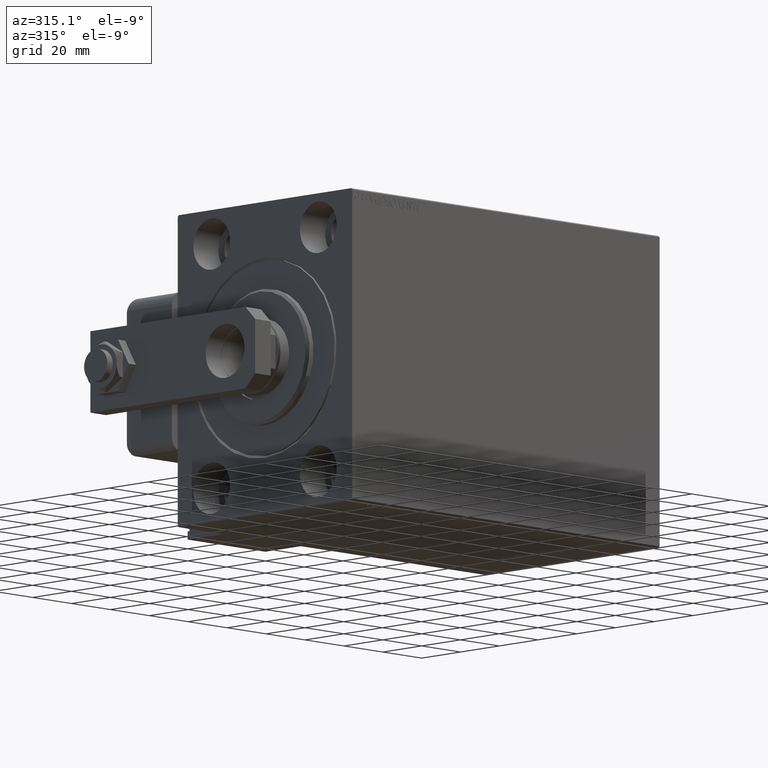
[diagram: clean part render]
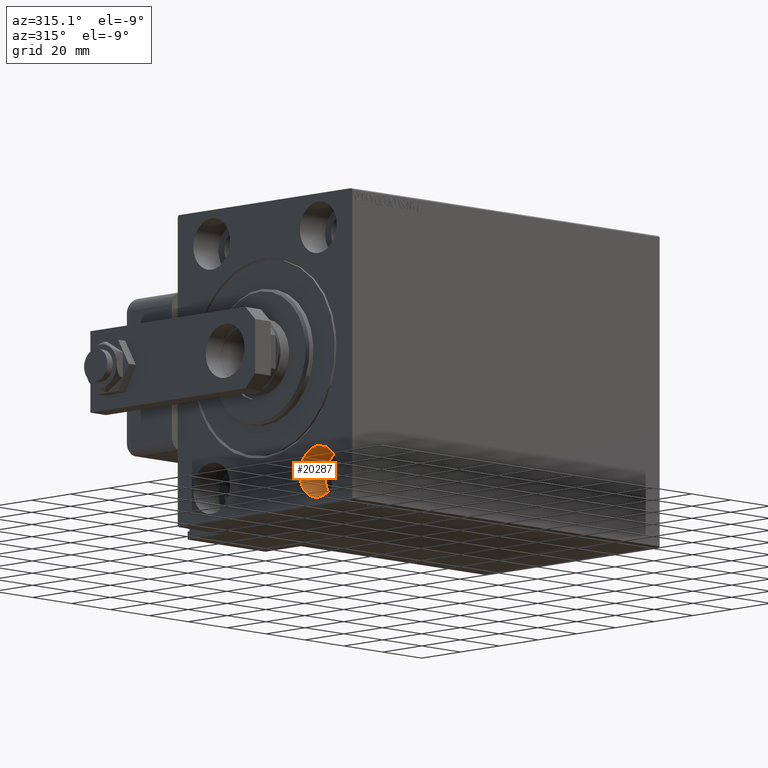
[diagram: same view with one face highlighted and labeled with its STEP entity id]
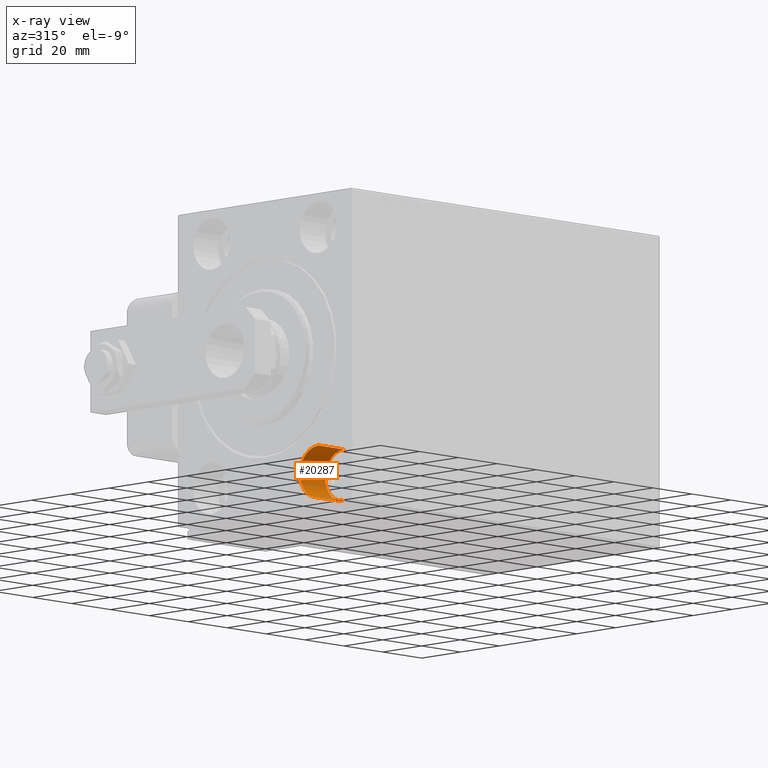
[diagram: x-ray of the same camera — body ghosted, the highlighted face saturated]
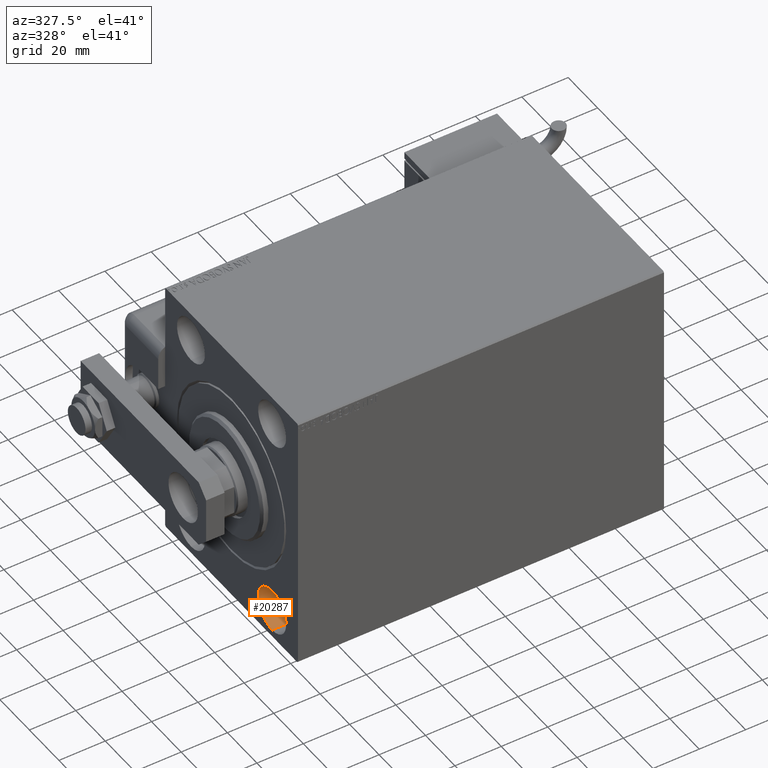
[diagram: same view with one face highlighted and labeled with its STEP entity id]
A machine part, auxiliary view. The second image highlights one B-rep face of the part: STEP entity #20287.
The next image is the same camera in x-ray: the body ghosted, the highlighted face saturated — about 0% of this face is hidden behind the body in this view.
A second angle (auxiliary view) of the same face is appended — the face is thin or edge-on in the first view.
In plain terms, the highlighted cylindrical surface (edge-blend (fillet) strip) has radius 9.5 mm, axis along (-1, -0, -0).
Its self-contained STEP definition (entity closure, byte-faithful):
#44 = EDGE_CURVE ( 'NONE', #39311, #5144, #53920, .T. ) ;
#1575 = VECTOR ( 'NONE', #12650, 1000.000000000000000 ) ;
#5144 = VERTEX_POINT ( 'NONE', #28489 ) ;
#5400 = CIRCLE ( 'NONE', #33353, 9.500000000000001776 ) ;
#5558 = DIRECTION ( 'NONE',  ( 0.000000000000000000, 0.000000000000000000, 1.000000000000000000 ) ) ;
#10283 = AXIS2_PLACEMENT_3D ( 'NONE', #28179, #46543, #5558 ) ;
#10616 = CIRCLE ( 'NONE', #22216, 9.500000000000001776 ) ;
#11534 = VERTEX_POINT ( 'NONE', #53905 ) ;
#12650 = DIRECTION ( 'NONE',  ( -1.000000000000000000, -0.000000000000000000, -0.000000000000000000 ) ) ;
#14274 = DIRECTION ( 'NONE',  ( 0.000000000000000000, 0.000000000000000000, 1.000000000000000000 ) ) ;
#15310 = ORIENTED_EDGE ( 'NONE', *, *, #49184, .F. ) ;
#16717 = ORIENTED_EDGE ( 'NONE', *, *, #44, .T. ) ;
#18806 = DIRECTION ( 'NONE',  ( 0.000000000000000000, 0.000000000000000000, 1.000000000000000000 ) ) ;
#18957 = VERTEX_POINT ( 'NONE', #33718 ) ;
#19394 = EDGE_CURVE ( 'NONE', #5144, #18957, #5400, .T. ) ;
#20287 = ADVANCED_FACE ( 'NONE', ( #27891 ), #23353, .F. ) ;
#21400 = CARTESIAN_POINT ( 'NONE',  ( 13.00000000000000000, -27.50000000000000000, -35.49999999999998579 ) ) ;
#22216 = AXIS2_PLACEMENT_3D ( 'NONE', #32370, #41417, #14274 ) ;
#23353 = CYLINDRICAL_SURFACE ( 'NONE', #10283, 9.500000000000001776 ) ;
#24805 = CARTESIAN_POINT ( 'NONE',  ( 13.00000000000000000, -27.50000000000000000, -54.49999999999998579 ) ) ;
#27891 = FACE_OUTER_BOUND ( 'NONE', #39163, .T. ) ;
#28179 = CARTESIAN_POINT ( 'NONE',  ( 13.00000000000000000, -27.50000000000000000, -44.99999999999998579 ) ) ;
#28489 = CARTESIAN_POINT ( 'NONE',  ( 0.000000000000000000, -27.50000000000000000, -35.49999999999998579 ) ) ;
#32370 = CARTESIAN_POINT ( 'NONE',  ( 13.00000000000000000, -27.50000000000000000, -44.99999999999998579 ) ) ;
#32952 = VECTOR ( 'NONE', #43477, 1000.000000000000000 ) ;
#33353 = AXIS2_PLACEMENT_3D ( 'NONE', #46222, #41699, #18806 ) ;
#33718 = CARTESIAN_POINT ( 'NONE',  ( 0.000000000000000000, -27.50000000000000000, -54.49999999999998579 ) ) ;
#38353 = LINE ( 'NONE', #24805, #32952 ) ;
#39163 = EDGE_LOOP ( 'NONE', ( #51780, #15310, #16717, #44773 ) ) ;
#39311 = VERTEX_POINT ( 'NONE', #48845 ) ;
#41417 = DIRECTION ( 'NONE',  ( -1.000000000000000000, 0.000000000000000000, 0.000000000000000000 ) ) ;
#41699 = DIRECTION ( 'NONE',  ( -1.000000000000000000, 0.000000000000000000, 0.000000000000000000 ) ) ;
#43477 = DIRECTION ( 'NONE',  ( -1.000000000000000000, -0.000000000000000000, -0.000000000000000000 ) ) ;
#44773 = ORIENTED_EDGE ( 'NONE', *, *, #19394, .T. ) ;
#46222 = CARTESIAN_POINT ( 'NONE',  ( 0.000000000000000000, -27.50000000000000000, -44.99999999999998579 ) ) ;
#46543 = DIRECTION ( 'NONE',  ( -1.000000000000000000, -0.000000000000000000, -0.000000000000000000 ) ) ;
#48845 = CARTESIAN_POINT ( 'NONE',  ( 13.00000000000000000, -27.50000000000000000, -35.49999999999998579 ) ) ;
#49184 = EDGE_CURVE ( 'NONE', #39311, #11534, #10616, .T. ) ;
#51780 = ORIENTED_EDGE ( 'NONE', *, *, #56881, .F. ) ;
#53905 = CARTESIAN_POINT ( 'NONE',  ( 13.00000000000000000, -27.50000000000000000, -54.49999999999998579 ) ) ;
#53920 = LINE ( 'NONE', #21400, #1575 ) ;
#56881 = EDGE_CURVE ( 'NONE', #11534, #18957, #38353, .T. ) ;